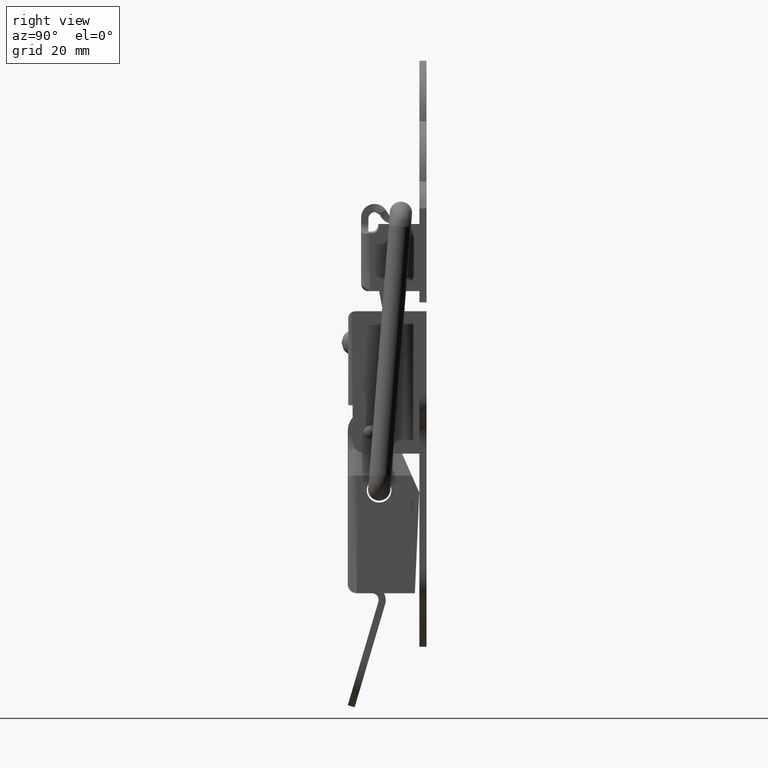
[diagram: clean part render]
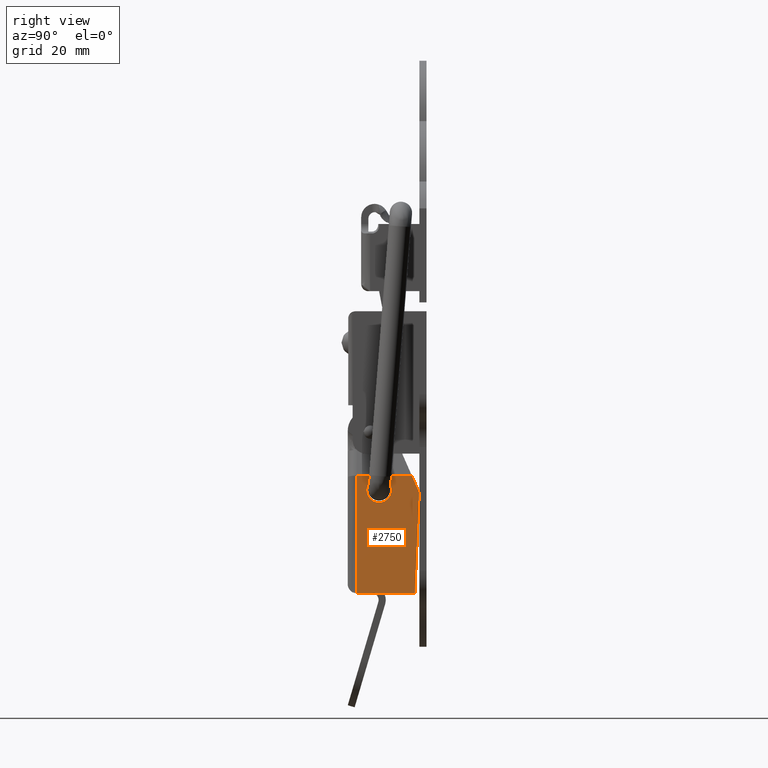
[diagram: same view with one face highlighted and labeled with its STEP entity id]
A machine part, right view. The second image highlights one B-rep face of the part: STEP entity #2750.
In plain terms, the highlighted face is a freeform B-spline surface patch.
Its self-contained STEP definition (entity closure, byte-faithful):
#517=CARTESIAN_POINT('',(14.099700000000000,4.641522903653148,-13.215759515981709));
#518=VERTEX_POINT('',#517);
#524=CARTESIAN_POINT('',(14.099700000000000,1.900000000000090,-10.250000000000000));
#525=VERTEX_POINT('',#524);
#526=CARTESIAN_POINT('',(14.099700000000007,4.641522903653148,-13.215759515981709));
#527=CARTESIAN_POINT('',(14.099700000000000,4.650000000000090,-13.108046288681633));
#528=CARTESIAN_POINT('',(14.099700000000000,4.650000000000090,-13.0));
#529=CARTESIAN_POINT('',(14.099700000000000,4.650000000000090,-10.249999999999998));
#530=CARTESIAN_POINT('',(14.099700000000000,1.900000000000090,-10.250000000000000));
#538=(BOUNDED_CURVE()B_SPLINE_CURVE(2,(#526,#527,#528,#529,#530),.UNSPECIFIED.,.F.,.U.)B_SPLINE_CURVE_WITH_KNOTS((3,2,3),(0.736331488048878,0.750000000000000,1.0),.UNSPECIFIED.)CURVE()GEOMETRIC_REPRESENTATION_ITEM()RATIONAL_B_SPLINE_CURVE((0.969723747295272,0.983986342152983,1.0,0.707106781186548,1.0))REPRESENTATION_ITEM(''));
#539=EDGE_CURVE('',#518,#525,#538,.T.);
#541=CARTESIAN_POINT('',(14.099700000000000,-0.841522903652968,-12.784240484018291));
#542=VERTEX_POINT('',#541);
#543=CARTESIAN_POINT('',(14.099700000000000,1.900000000000090,-10.250000000000000));
#544=CARTESIAN_POINT('',(14.099700000000002,-0.642076639870185,-10.249999999999998));
#545=CARTESIAN_POINT('',(14.099699999999997,-0.841522903652968,-12.784240484018284));
#553=(BOUNDED_CURVE()B_SPLINE_CURVE(2,(#543,#544,#545),.UNSPECIFIED.,.F.,.U.)B_SPLINE_CURVE_WITH_KNOTS((3,3),(0.0,0.236331488048878),.UNSPECIFIED.)CURVE()GEOMETRIC_REPRESENTATION_ITEM()RATIONAL_B_SPLINE_CURVE((1.0,0.723120439033564,0.969723747295271))REPRESENTATION_ITEM(''));
#554=EDGE_CURVE('',#525,#542,#553,.T.);
#600=CARTESIAN_POINT('',(14.099700000000000,1.900000000000090,-15.750000000000000));
#601=VERTEX_POINT('',#600);
#602=CARTESIAN_POINT('',(14.099700000000002,-0.841522903652968,-12.784240484018291));
#603=CARTESIAN_POINT('',(14.099700000000004,-0.849999999999910,-12.891953711318370));
#604=CARTESIAN_POINT('',(14.099700000000000,-0.849999999999910,-13.0));
#605=CARTESIAN_POINT('',(14.099700000000000,-0.849999999999910,-15.750000000000009));
#606=CARTESIAN_POINT('',(14.099700000000000,1.900000000000090,-15.750000000000000));
#614=(BOUNDED_CURVE()B_SPLINE_CURVE(2,(#602,#603,#604,#605,#606),.UNSPECIFIED.,.F.,.U.)B_SPLINE_CURVE_WITH_KNOTS((3,2,3),(0.236331488048878,0.250000000000000,0.500000000000000),.UNSPECIFIED.)CURVE()GEOMETRIC_REPRESENTATION_ITEM()RATIONAL_B_SPLINE_CURVE((0.969723747295271,0.983986342152983,1.0,0.707106781186548,1.0))REPRESENTATION_ITEM(''));
#615=EDGE_CURVE('',#542,#601,#614,.T.);
#617=CARTESIAN_POINT('',(14.099700000000000,1.900000000000090,-15.750000000000000));
#618=CARTESIAN_POINT('',(14.099700000000009,4.442076639870369,-15.750000000000007));
#619=CARTESIAN_POINT('',(14.099700000000007,4.641522903653148,-13.215759515981709));
#627=(BOUNDED_CURVE()B_SPLINE_CURVE(2,(#617,#618,#619),.UNSPECIFIED.,.F.,.U.)B_SPLINE_CURVE_WITH_KNOTS((3,3),(0.500000000000000,0.736331488048878),.UNSPECIFIED.)CURVE()GEOMETRIC_REPRESENTATION_ITEM()RATIONAL_B_SPLINE_CURVE((1.0,0.723120439033564,0.969723747295272))REPRESENTATION_ITEM(''));
#628=EDGE_CURVE('',#601,#518,#627,.T.);
#1282=CARTESIAN_POINT('',(14.099700000000000,-3.100000000000000,-36.0));
#1283=VERTEX_POINT('',#1282);
#1540=CARTESIAN_POINT('',(14.099700000000000,-3.100000000000000,-9.727184339998001));
#1541=VERTEX_POINT('',#1540);
#1591=CARTESIAN_POINT('',(14.099700000000000,-3.100000000000000,-9.727184339998001));
#1592=CARTESIAN_POINT('',(14.099700000000000,-3.100000000000000,-36.0));
#1593=QUASI_UNIFORM_CURVE('',1,(#1591,#1592),.UNSPECIFIED.,.F.,.U.);
#1594=EDGE_CURVE('',#1541,#1283,#1593,.T.);
#2681=CARTESIAN_POINT('',(14.099700000000000,9.220922220983660,-9.727184339998001));
#2682=VERTEX_POINT('',#2681);
#2683=CARTESIAN_POINT('',(14.099700000000000,9.220922220983660,-9.727184339998001));
#2684=CARTESIAN_POINT('',(14.099700000000000,-3.100000000000000,-9.727184339998001));
#2685=QUASI_UNIFORM_CURVE('',1,(#2683,#2684),.UNSPECIFIED.,.F.,.U.);
#2686=EDGE_CURVE('',#2682,#1541,#2685,.T.);
#2702=CARTESIAN_POINT('',(14.099700000000000,10.878260869565301,-13.500000000000000));
#2703=VERTEX_POINT('',#2702);
#2709=CARTESIAN_POINT('',(14.099700000000000,9.900000000000000,-36.0));
#2710=VERTEX_POINT('',#2709);
#2711=CARTESIAN_POINT('',(14.099700000000000,10.878260869565301,-13.500000000000000));
#2712=CARTESIAN_POINT('',(14.099700000000000,9.900000000000000,-36.0));
#2713=QUASI_UNIFORM_CURVE('',1,(#2711,#2712),.UNSPECIFIED.,.F.,.U.);
#2714=EDGE_CURVE('',#2703,#2710,#2713,.T.);
#2724=CARTESIAN_POINT('',(14.099700000000000,-3.798214053402038,-8.414857002072319));
#2725=CARTESIAN_POINT('',(14.099700000000000,11.576474298090380,-8.414857002072319));
#2726=CARTESIAN_POINT('',(14.099700000000000,-3.798214053402038,-37.312327807720237));
#2727=CARTESIAN_POINT('',(14.099700000000000,11.576474298090380,-37.312327807720237));
#2728=B_SPLINE_SURFACE_WITH_KNOTS('',1,1,((#2724,#2726),(#2725,#2727)),.UNSPECIFIED.,.F.,.F.,.U.,(2,2),(2,2),(0.0,15.374688351492420),(0.0,28.897470805647920),.UNSPECIFIED.);
#2729=ORIENTED_EDGE('',*,*,#2686,.T.);
#2730=ORIENTED_EDGE('',*,*,#1594,.T.);
#2731=CARTESIAN_POINT('',(14.099700000000000,9.900000000000000,-36.0));
#2732=CARTESIAN_POINT('',(14.099700000000000,-3.100000000000000,-36.0));
#2733=QUASI_UNIFORM_CURVE('',1,(#2731,#2732),.UNSPECIFIED.,.F.,.U.);
#2734=EDGE_CURVE('',#2710,#1283,#2733,.T.);
#2735=ORIENTED_EDGE('',*,*,#2734,.F.);
#2736=ORIENTED_EDGE('',*,*,#2714,.F.);
#2737=CARTESIAN_POINT('',(14.099700000000000,9.220922220983660,-9.727184339998001));
#2738=CARTESIAN_POINT('',(14.099700000000000,10.878260869565301,-13.500000000000000));
#2739=QUASI_UNIFORM_CURVE('',1,(#2737,#2738),.UNSPECIFIED.,.F.,.U.);
#2740=EDGE_CURVE('',#2682,#2703,#2739,.T.);
#2741=ORIENTED_EDGE('',*,*,#2740,.F.);
#2742=EDGE_LOOP('',(#2729,#2730,#2735,#2736,#2741));
#2743=FACE_OUTER_BOUND('',#2742,.T.);
#2744=ORIENTED_EDGE('',*,*,#628,.F.);
#2745=ORIENTED_EDGE('',*,*,#615,.F.);
#2746=ORIENTED_EDGE('',*,*,#554,.F.);
#2747=ORIENTED_EDGE('',*,*,#539,.F.);
#2748=EDGE_LOOP('',(#2744,#2745,#2746,#2747));
#2749=FACE_BOUND('',#2748,.T.);
#2750=ADVANCED_FACE('',(#2743,#2749),#2728,.F.);